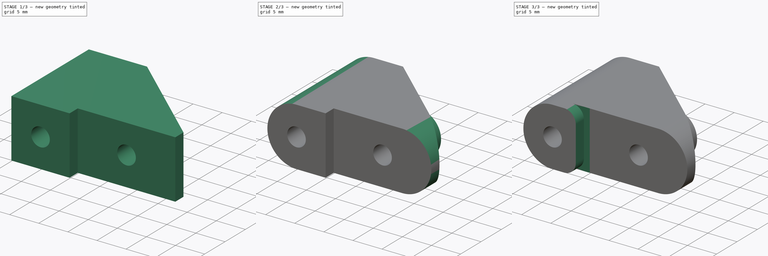
[diagram: build sequence overview — one tinted view per stage of 3, left to right]
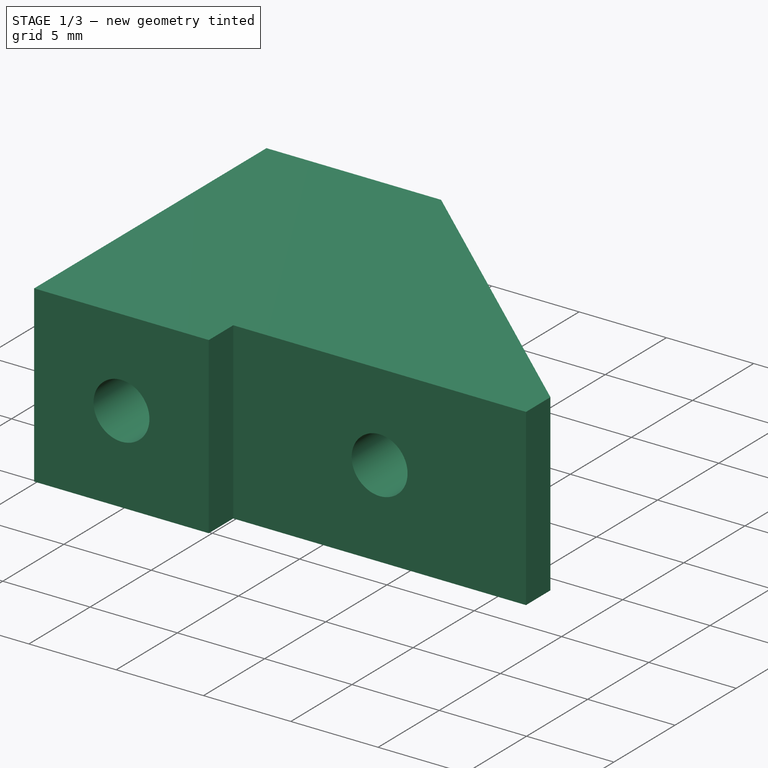
[diagram: stage 1 of 3 — iso view after this stage's code; geometry added in this stage tinted green]
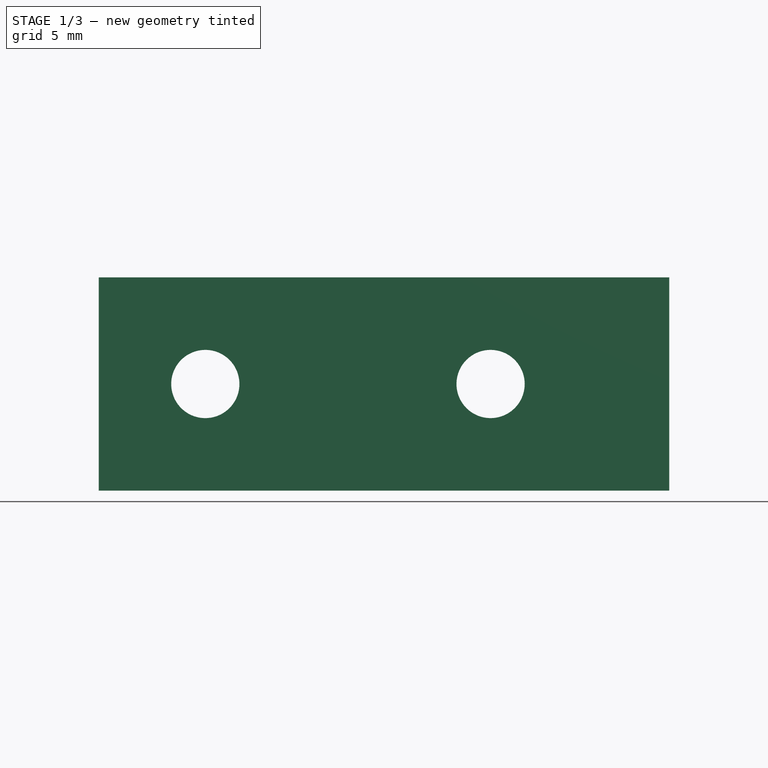
[diagram: stage 1 of 3 — front view after this stage's code; geometry added in this stage tinted green]
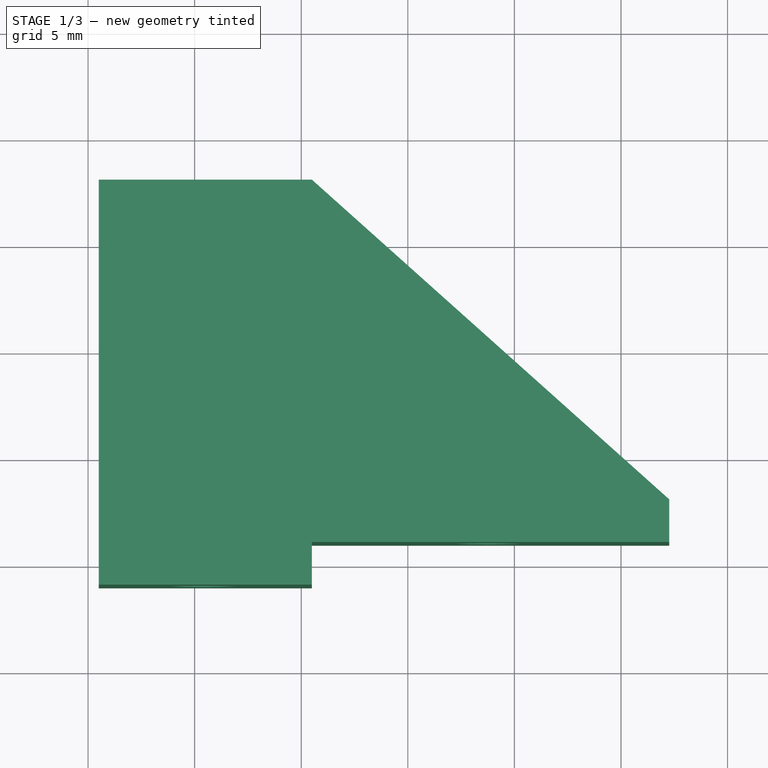
[diagram: stage 1 of 3 — top view after this stage's code; geometry added in this stage tinted green]
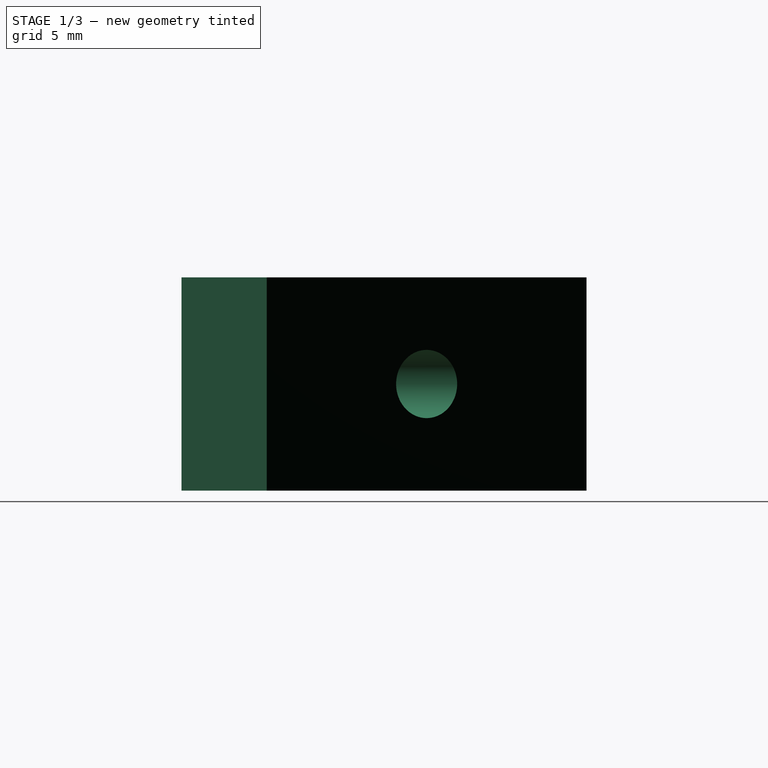
[diagram: stage 1 of 3 — right view after this stage's code; geometry added in this stage tinted green]
FCSTD DOCUMENT  (FreeCAD 0.20R29603 (Git))
Label: haste-articulada
License: All rights reserved
LicenseURL: http://en.wikipedia.org/wiki/All_rights_reserved
objects: Sketcher::SketchObject×3, PartDesign::Pocket×3, PartDesign::Pad×2, PartDesign::Fillet×2, PartDesign::Body×1
note: 18 computed .brp shape members not serialized (recipe doc carries the construction recipe); baked Part::Feature solids carry a one-line shape summary decoded from their .brp

FEATURE [Sketcher::SketchObject] Sketch
  FullyConstrained = true
  MapMode = 5
  Support = -> [XY_Plane]
  sketch-geometry (24):
    g0: LineSegment StartX=-14.5 StartY=18 StartZ=0 EndX=14.5 EndY=18 EndZ=0
    g1: LineSegment StartX=14.5 StartY=18 StartZ=0 EndX=14.5 EndY=-18 EndZ=0
    g2: LineSegment StartX=14.5 StartY=-18 StartZ=0 EndX=-14.5 EndY=-18 EndZ=0
    g3: LineSegment StartX=-14.5 StartY=-18 StartZ=0 EndX=-14.5 EndY=18 EndZ=0
    g4: LineSegment StartX=-19.5 StartY=-1 StartZ=0 EndX=-19.5 EndY=18 EndZ=0
    g5: LineSegment StartX=-19.5 StartY=18 StartZ=0 EndX=-9.5 EndY=18 EndZ=0
    g6: LineSegment StartX=-19.5 StartY=-1 StartZ=0 EndX=-9.5 EndY=-1 EndZ=0
    g7: LineSegment StartX=9.5 StartY=1 StartZ=0 EndX=19.5 EndY=1 EndZ=0
    g8: LineSegment StartX=19.5 StartY=1 StartZ=0 EndX=19.5 EndY=-18 EndZ=0
    g9: LineSegment StartX=19.5 StartY=-18 StartZ=0 EndX=9.5 EndY=-18 EndZ=0
    g10: LineSegment StartX=-9.5 StartY=-1 StartZ=0 EndX=9.5 EndY=-18 EndZ=0
    g11: LineSegment StartX=-9.5 StartY=18 StartZ=0 EndX=9.5 EndY=1 EndZ=0
    g12: LineSegment StartX=9.5 StartY=1 StartZ=0 EndX=-9.5 EndY=1 EndZ=0
    g13: LineSegment StartX=-9.5 StartY=-1 StartZ=0 EndX=-9.5 EndY=1 EndZ=0
    g14: GeomPoint X=0 Y=9.5 Z=0
    g15: GeomPoint X=0 Y=1 Z=0
    g16: LineSegment StartX=9.5 StartY=-18 StartZ=0 EndX=-11.7353 EndY=1 EndZ=0
    g17: LineSegment StartX=19.5 StartY=1 StartZ=0 EndX=-11.7353 EndY=1 EndZ=0
    g18: LineSegment StartX=7.26471 StartY=1 StartZ=0 EndX=7.26471 EndY=3 EndZ=0
    g19: LineSegment StartX=-9.5 StartY=1 StartZ=0 EndX=7.26471 EndY=1 EndZ=0
    g20: LineSegment StartX=7.26471 StartY=3 StartZ=0 EndX=-9.5 EndY=18 EndZ=0
    g21: LineSegment StartX=-11.7353 StartY=1 StartZ=0 EndX=-9.5 EndY=1 EndZ=0
    g22: LineSegment StartX=9.5 StartY=1 StartZ=0 EndX=7.26471 EndY=1 EndZ=0
    g23: GeomPoint X=0 Y=10 Z=0
  constraints (62):
    c: Coincident(g0,g1)
    c: Coincident(g1,g2)
    c: Coincident(g2,g3)
    c: Coincident(g3,g0)
    c: Horizontal(g2)
    c: Vertical(g1)
    c: DistanceX(g0,g0) = 29
    c: DistanceY(g3,g3) = 36
    c: Symmetric(g0,g0,g-2)
    c: Symmetric(g2,g0,g-1)
    c: Vertical(g4)
    c: Coincident(g4,g5)
    c: Coincident(g6,g4)
    c: Horizontal(g6)
    c: Symmetric(g5,g4,g3)
    c: Equal(g6,g5)
    c: DistanceX(g5,g5) = 10
    c: DistanceY(g4,g4) = 19
    c: PointOnObject(g5,g0)
    c: Coincident(g7,g8)
    c: Vertical(g8)
    c: Coincident(g8,g9)
    c: Horizontal(g9)
    c: Symmetric(g7,g7,g1)
    c: PointOnObject(g1,g9)
    c: Equal(g8,g4)
    c: Equal(g9,g7)
    c: Equal(g7,g6)
    c: Coincident(g10,g6)
    c: Coincident(g10,g9)
    c: Coincident(g11,g5)
    c: Coincident(g11,g7)
    c: Coincident(g12,g11)
    c: Horizontal(g12)
    c: Coincident(g13,g6)
    c: Coincident(g13,g12)
    c: Vertical(g13)
    c: PointOnObject(g14,g11)
    c: PointOnObject(g14,g-2)
    c: PointOnObject(g15,g12)
    c: PointOnObject(g15,g-2)
    c: Coincident(g16,g9)
    c: Coincident(g17,g7)
    c: Coincident(g17,g16)
    c: Horizontal(g17)
    c: PointOnObject(g6,g16)
    c: DistanceX(g16,g12) = 2.23529
    c: PointOnObject(g18,g12)
    c: PointOnObject(g18,g11)
    c: Vertical(g18)
    c: Coincident(g19,g13)
    c: Coincident(g19,g18)
    c: Coincident(g20,g18)
    c: Coincident(g20,g5)
    c: Coincident(g21,g16)
    c: Coincident(g22,g7)
    c: Equal(g22,g21)
    c: Coincident(g21,g13)
    c: Coincident(g22,g18)
    c: PointOnObject(g23,g-2)
    c: DistanceY(g15,g23) = 9
    c: DistanceY(g23,g0) = 8
FEATURE [PartDesign::Pad] Pad
  Direction = (0,0,1)
  Length = 10
  Length2 = 10
  Profile = -> Sketch
  ReferenceAxis = -> Sketch [N_Axis]
  Type = 0
FEATURE [Sketcher::SketchObject] Sketch001
  ExternalGeometry = -> [Pad]
  FullyConstrained = true
  MapMode = 5
  Placement = pos=(0,-1,0) rot=(1,0,0;1.5708rad)
  Support = -> [Pad]
  sketch-geometry (5):
    g0: Circle CenterX=-14.5 CenterY=5 CenterZ=0 NormalX=0 NormalY=0 NormalZ=1 AngleXU=0 Radius=5
    g1: Circle CenterX=-14.5 CenterY=5 CenterZ=0 NormalX=0 NormalY=0 NormalZ=1 AngleXU=0 Radius=1.6
    g2: LineSegment StartX=-9.5 StartY=10 StartZ=0 EndX=7.26471 EndY=0 EndZ=0
    g3: LineSegment StartX=7.26471 StartY=10 StartZ=0 EndX=-9.5 EndY=0 EndZ=0
    g4: Circle CenterX=-1.11765 CenterY=5 CenterZ=0 NormalX=0 NormalY=0 NormalZ=1 AngleXU=0 Radius=1.6
  constraints (12):
    c: Tangent(g0,g-5)
    c: Tangent(g0,g-3)
    c: Tangent(g0,g-4)
    c: Coincident(g1,g0)
    c: Diameter(g1) = 3.2
    c: Coincident(g2,g-5)
    c: Coincident(g2,g-7)
    c: Coincident(g3,g-7)
    c: Coincident(g3,g-6)
    c: PointOnObject(g4,g3)
    c: PointOnObject(g4,g2)
    c: Equal(g4,g1)
FEATURE [PartDesign::Pocket] Pocket
  BaseFeature = -> Pad
  Direction = (0,1,-2e-16)
  Length = 5
  Length2 = 5
  Profile = -> Sketch001
  ReferenceAxis = -> Sketch001 [N_Axis]
  Type = 1
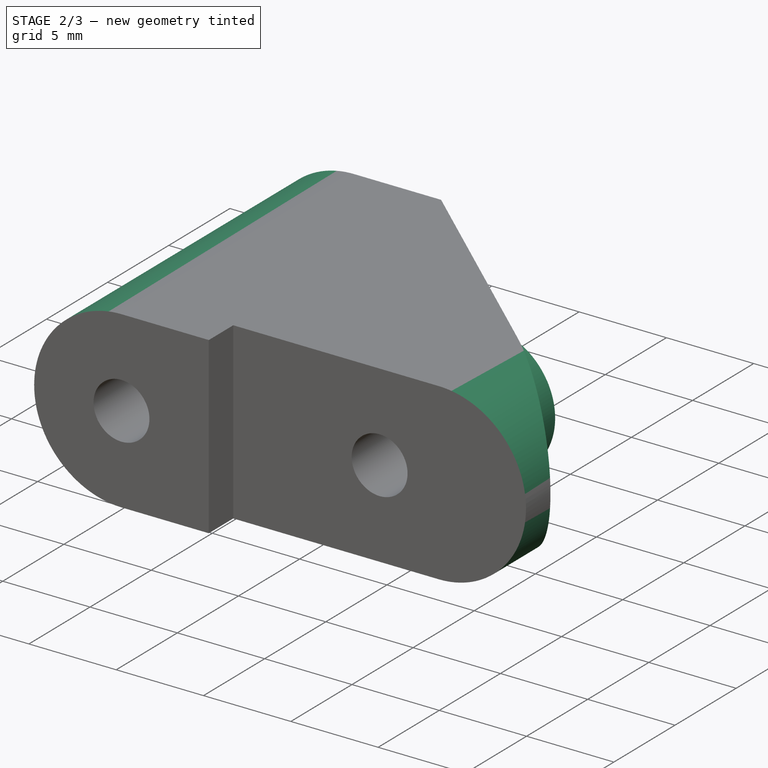
[diagram: stage 2 of 3 — iso view after this stage's code; geometry added in this stage tinted green]
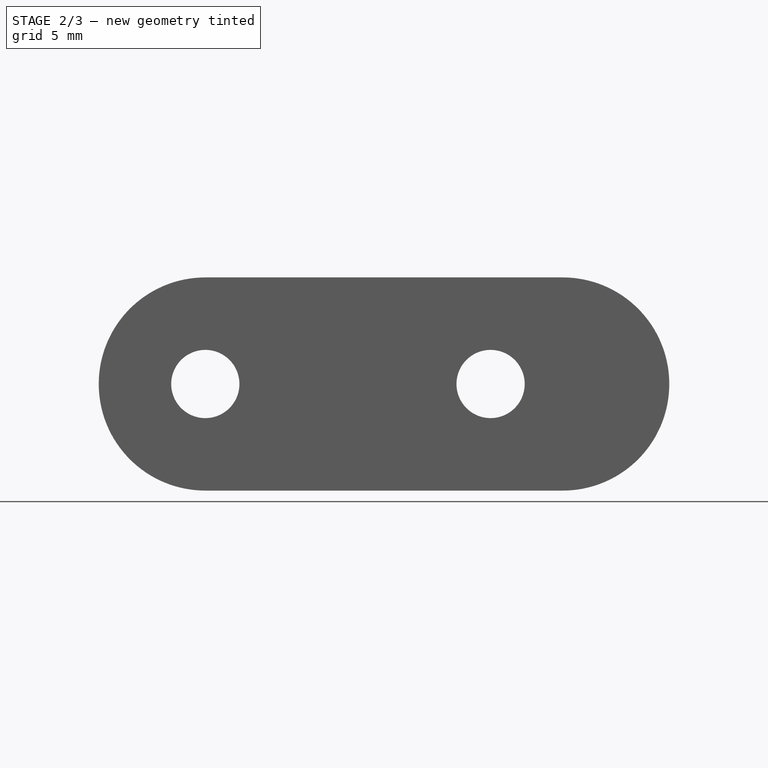
[diagram: stage 2 of 3 — front view after this stage's code; geometry added in this stage tinted green]
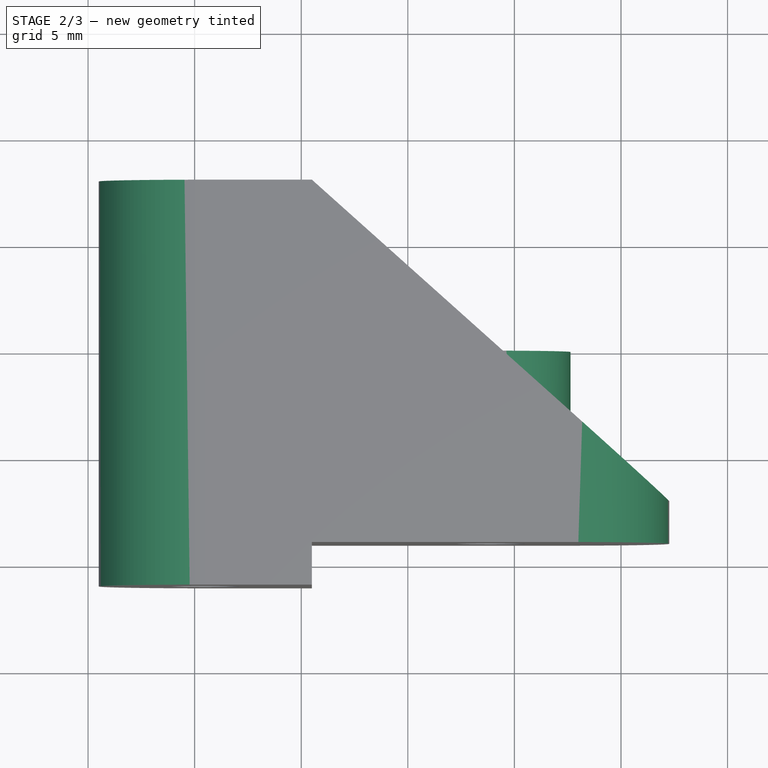
[diagram: stage 2 of 3 — top view after this stage's code; geometry added in this stage tinted green]
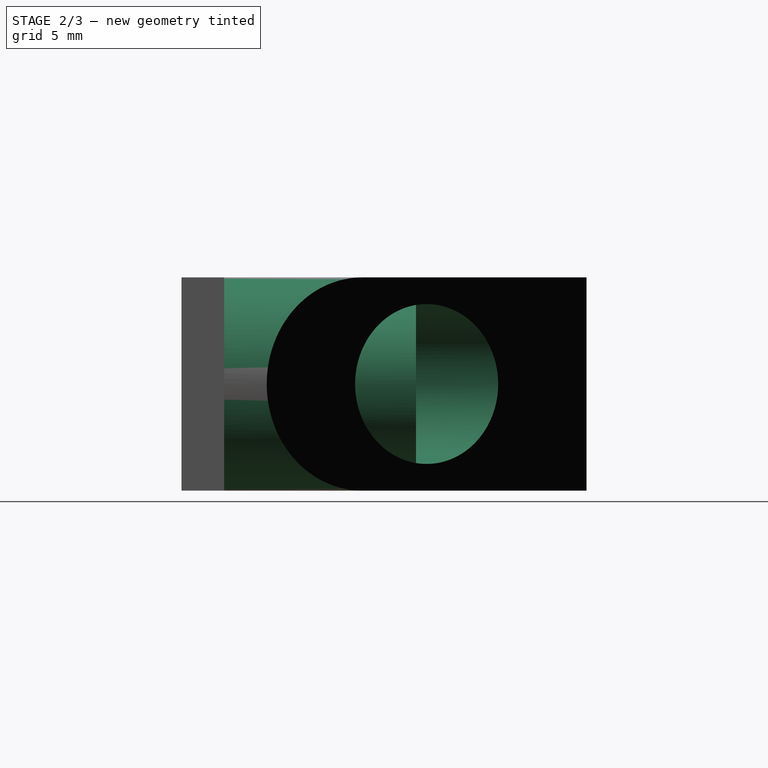
[diagram: stage 2 of 3 — right view after this stage's code; geometry added in this stage tinted green]
FEATURE [Sketcher::SketchObject] Sketch003
  ExternalGeometry = -> [Pocket]
  FullyConstrained = true
  MapMode = 5
  Placement = pos=(-1e-16,1,0) rot=(1,0,0;1.5708rad)
  Support = -> [Pocket]
  sketch-geometry (2):
    g0: Circle CenterX=-1.11765 CenterY=5 CenterZ=0 NormalX=0 NormalY=0 NormalZ=1 AngleXU=0 Radius=3.75
    g1: Circle CenterX=-1.11765 CenterY=5 CenterZ=0 NormalX=0 NormalY=0 NormalZ=1 AngleXU=0 Radius=1.6
  constraints (4):
    c: Coincident(g0,g-3)
    c: Coincident(g1,g0)
    c: Equal(g1,g-3)
    c: Diameter(g0) = 7.5
FEATURE [PartDesign::Pad] Pad001
  BaseFeature = -> Pocket
  Direction = (1e-16,-1,2e-16)
  Length = 10
  Length2 = 10
  Profile = -> Sketch003
  ReferenceAxis = -> Sketch003 [N_Axis]
  Reversed = true
  Type = 3
  UpToFace = -> Pocket [Face9]
FEATURE [PartDesign::Pocket] Pocket001
  BaseFeature = -> Pad001
  Direction = (0,-1,0)
  Length = 8
  Length2 = 5
  Profile = -> Pad001 [Face15]
  Type = 0
FEATURE [PartDesign::Fillet] Fillet
  Base = -> Pocket001 [Edge15,Edge10,Edge18,Edge13]
  BaseFeature = -> Pocket001
  Radius = 4.999
  SupportTransform = false
  UseAllEdges = false
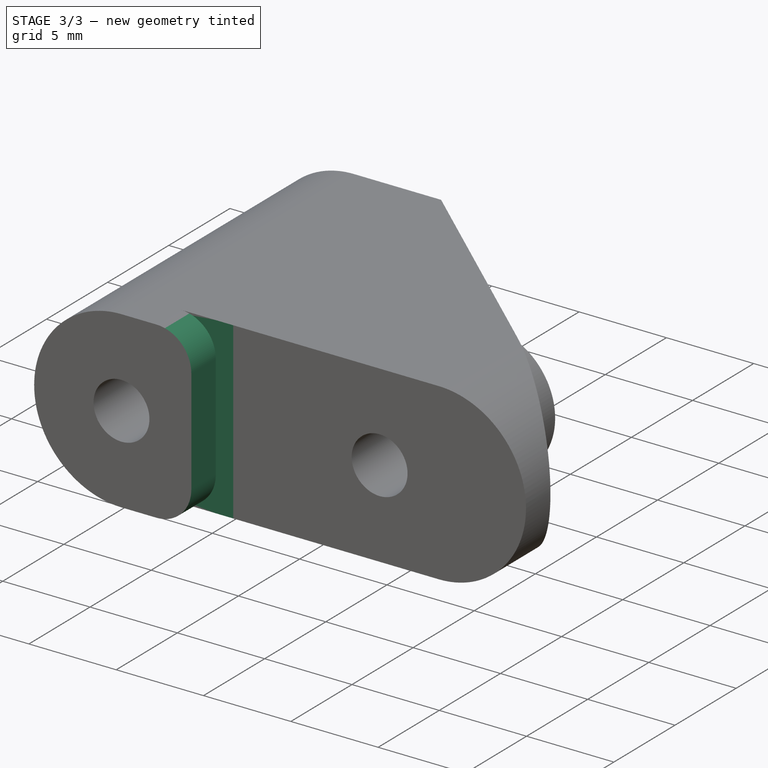
[diagram: stage 3 of 3 — iso view after this stage's code; geometry added in this stage tinted green]
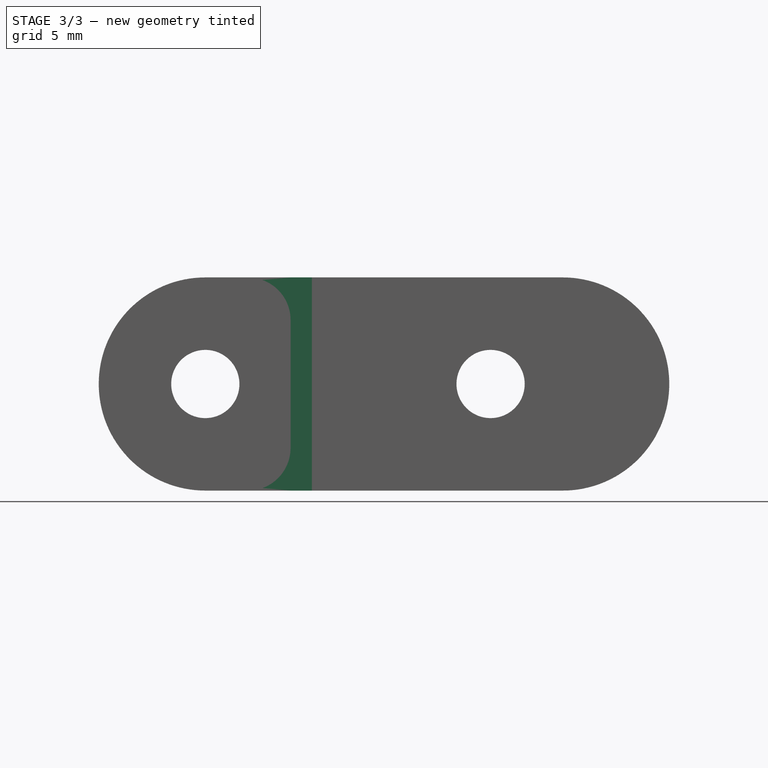
[diagram: stage 3 of 3 — front view after this stage's code; geometry added in this stage tinted green]
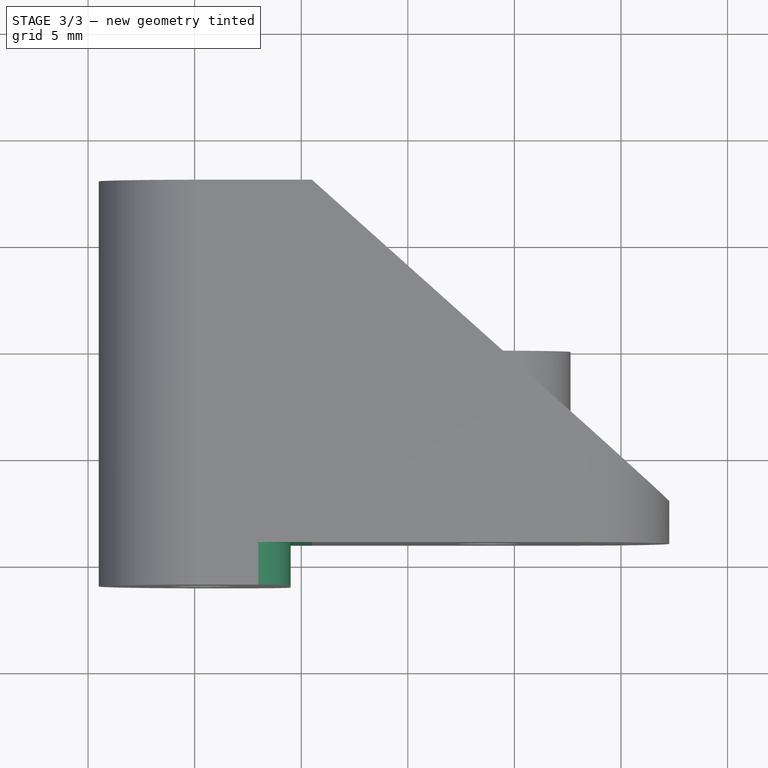
[diagram: stage 3 of 3 — top view after this stage's code; geometry added in this stage tinted green]
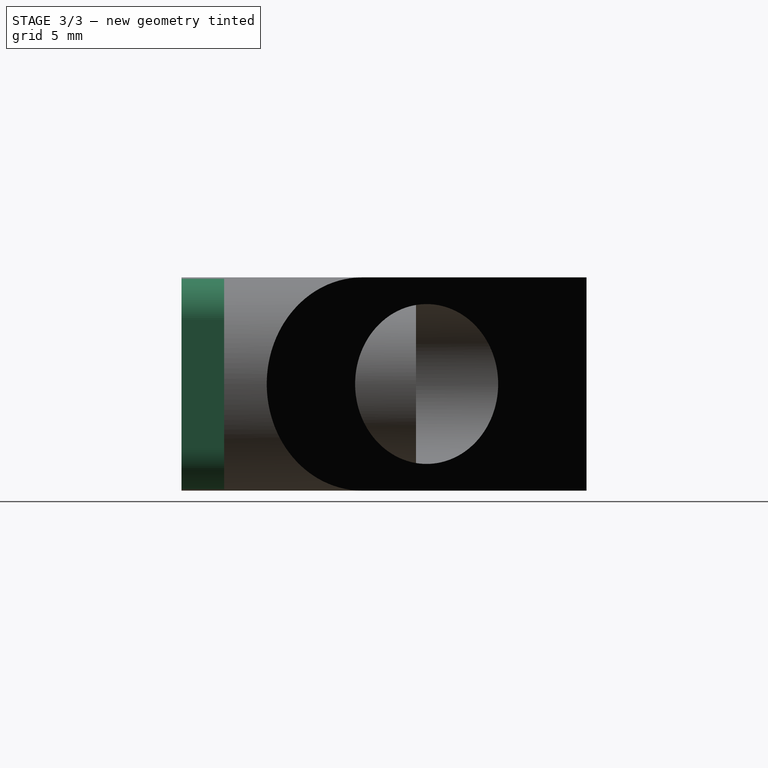
[diagram: stage 3 of 3 — right view after this stage's code; geometry added in this stage tinted green]
FEATURE [PartDesign::Pocket] Pocket002
  BaseFeature = -> Fillet
  Direction = (-1,0,0)
  Length = 1
  Length2 = 5
  Profile = -> Fillet [Face4]
  Type = 0
FEATURE [PartDesign::Fillet] Fillet001
  Base = -> Pocket002 [Edge9,Edge21]
  BaseFeature = -> Pocket002
  Radius = 2
  SupportTransform = false
  UseAllEdges = false
FEATURE [PartDesign::Body] Body
  Group = -> [Sketch,Pad,Sketch001,Pocket,Sketch003,Pad001,Pocket001,Fillet,Pocket002,Fillet001]
  Origin = -> Origin
  Tip = -> Fillet001
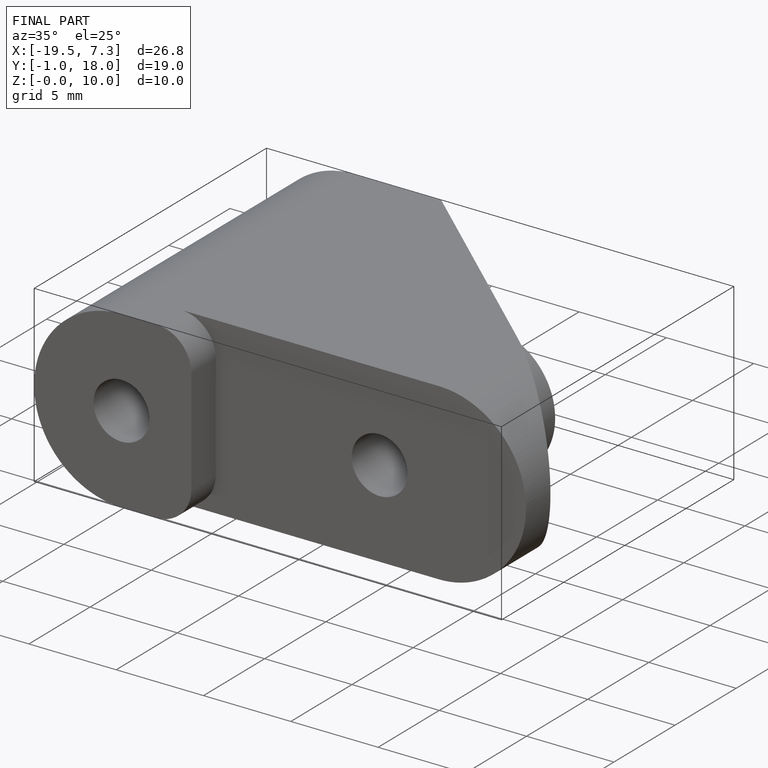
[diagram: finished part — iso view with bounding-box wireframe]
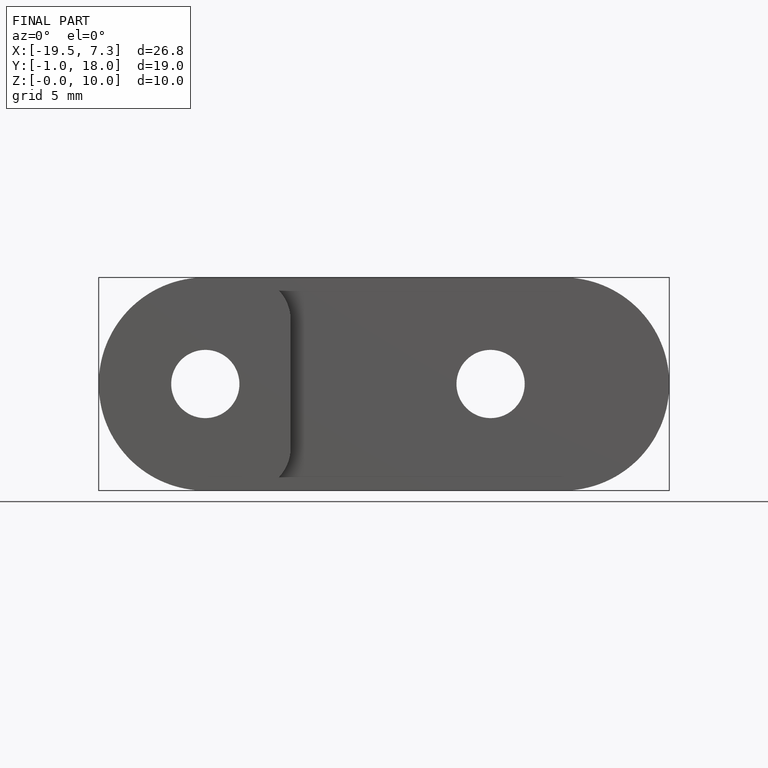
[diagram: finished part — front view with bounding-box wireframe]
